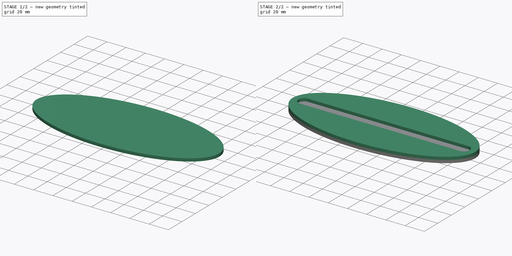
[diagram: build sequence overview — one tinted view per stage of 2, left to right]
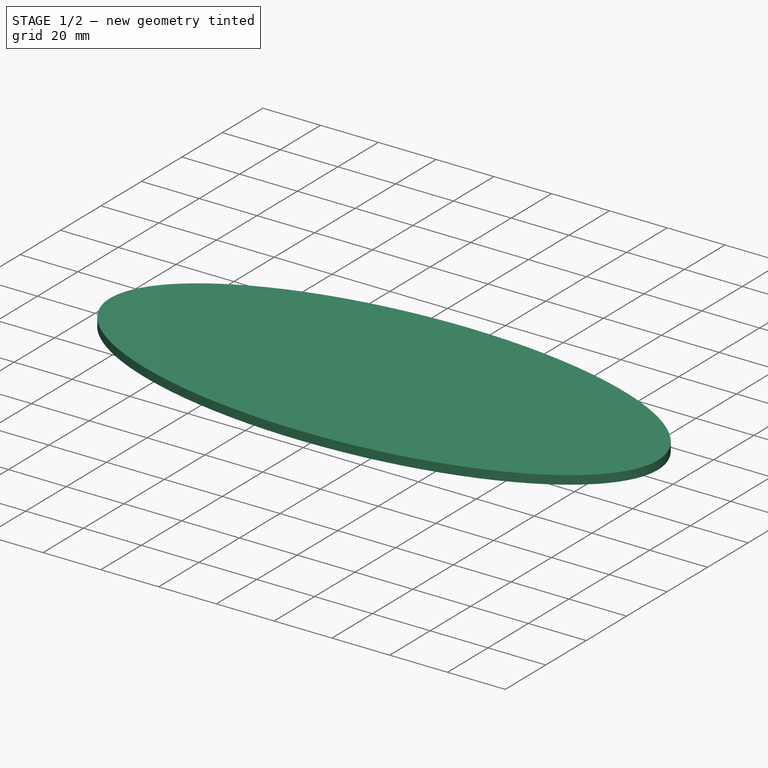
[diagram: stage 1 of 2 — iso view after this stage's code; geometry added in this stage tinted green]
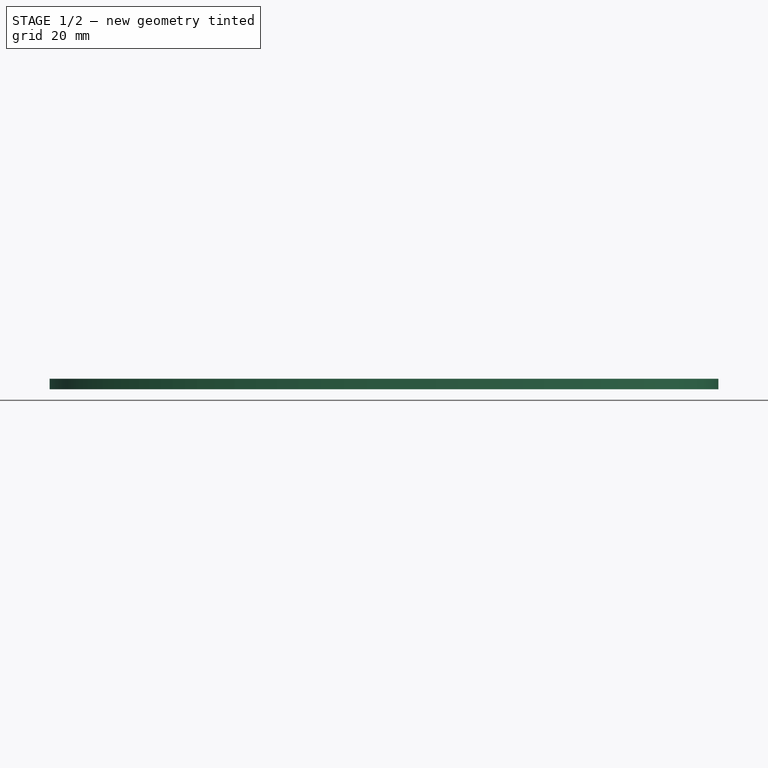
[diagram: stage 1 of 2 — front view after this stage's code; geometry added in this stage tinted green]
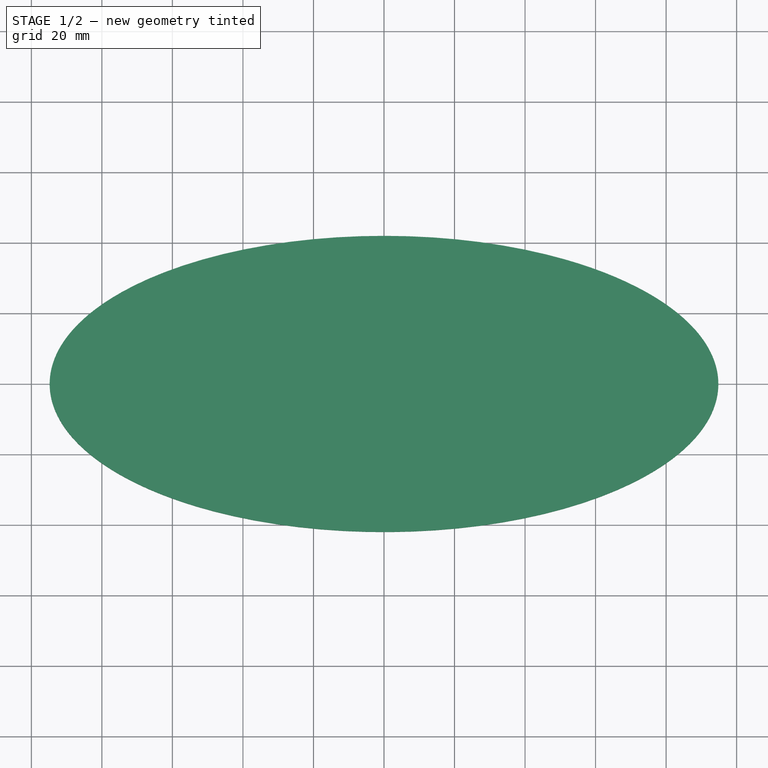
[diagram: stage 1 of 2 — top view after this stage's code; geometry added in this stage tinted green]
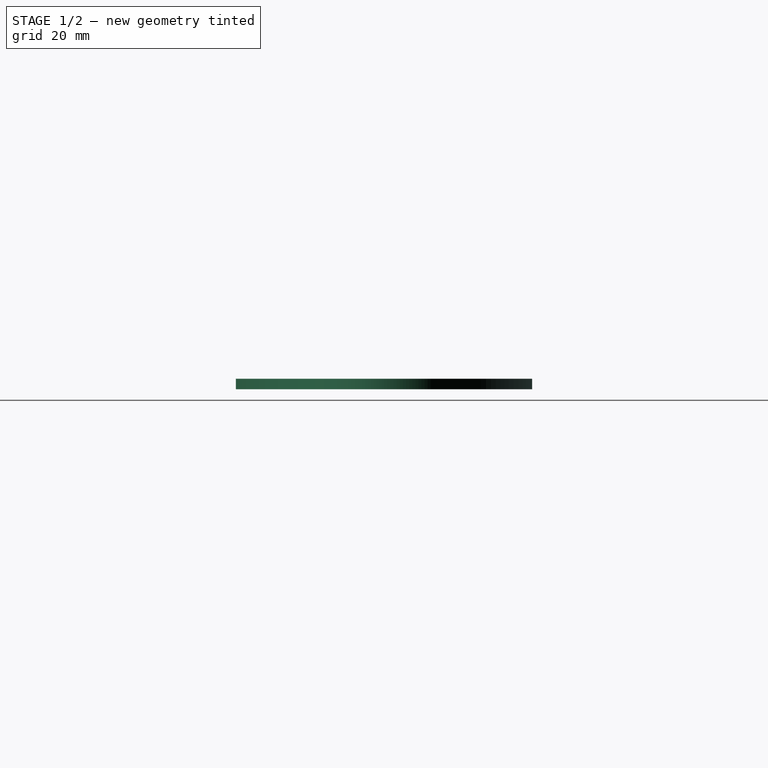
[diagram: stage 1 of 2 — right view after this stage's code; geometry added in this stage tinted green]
FCSTD DOCUMENT  (FreeCAD 0.17R13541 (Git))
Label: Acry-Base-24-WiFi
License: All rights reserved
LicenseURL: http://en.wikipedia.org/wiki/All_rights_reserved
objects: Sketcher::SketchObject×2, PartDesign::Pad×2, App::MeasureDistance×2, PartDesign::Body×1, App::Part×1
note: 7 computed .brp shape members not serialized (recipe doc carries the construction recipe); baked Part::Feature solids carry a one-line shape summary decoded from their .brp

FEATURE [Sketcher::SketchObject] Sketch
  MapMode = 5
  Support = -> [XY_Plane001]
  sketch-geometry (5):
    g0: Ellipse CenterX=0 CenterY=0 CenterZ=0 NormalX=0 NormalY=0 NormalZ=1 MajorRadius=94.8103 MinorRadius=42 AngleXU=0
    g1: LineSegment [constr] StartX=94.8103 StartY=0 StartZ=0 EndX=-94.8103 EndY=0 EndZ=0
    g2: LineSegment [constr] StartX=0 StartY=42 StartZ=0 EndX=0 EndY=-42 EndZ=0
    g3: GeomPoint X=85 Y=0 Z=0
    g4: GeomPoint X=-85 Y=0 Z=0
  constraints (5):
    c: InternalAlignment(g1-g4 -> g0) x4
    c: Coincident(g0,g-1)
    c: Distance(g3,g4) = 170
    c: Distance(g2,g2) = 84
    c: PointOnObject(g2,g-2)
FEATURE [PartDesign::Pad] Pad
  Length = 3
  Length2 = 100
  Profile = -> Sketch
  Type = 0
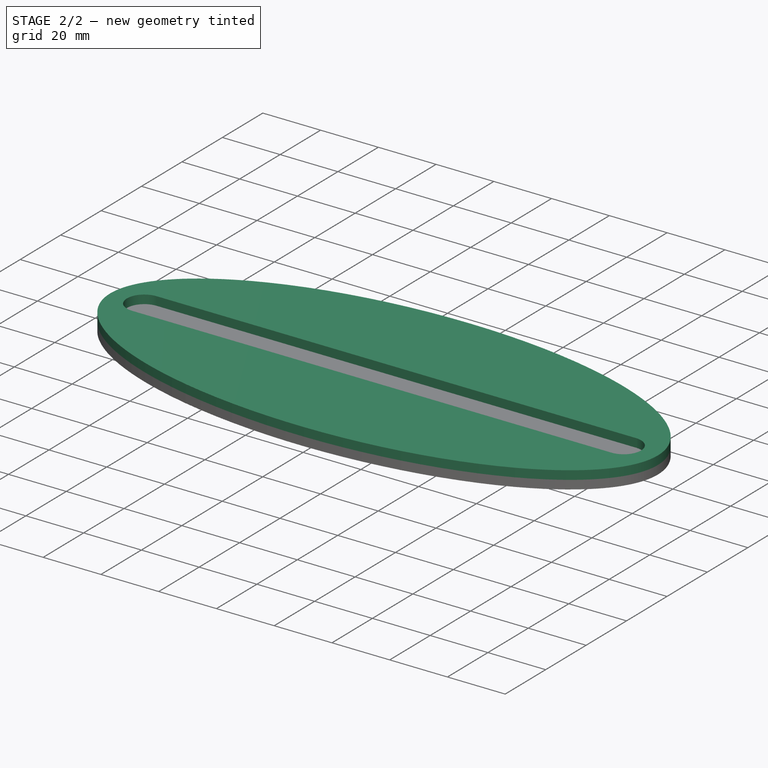
[diagram: stage 2 of 2 — iso view after this stage's code; geometry added in this stage tinted green]
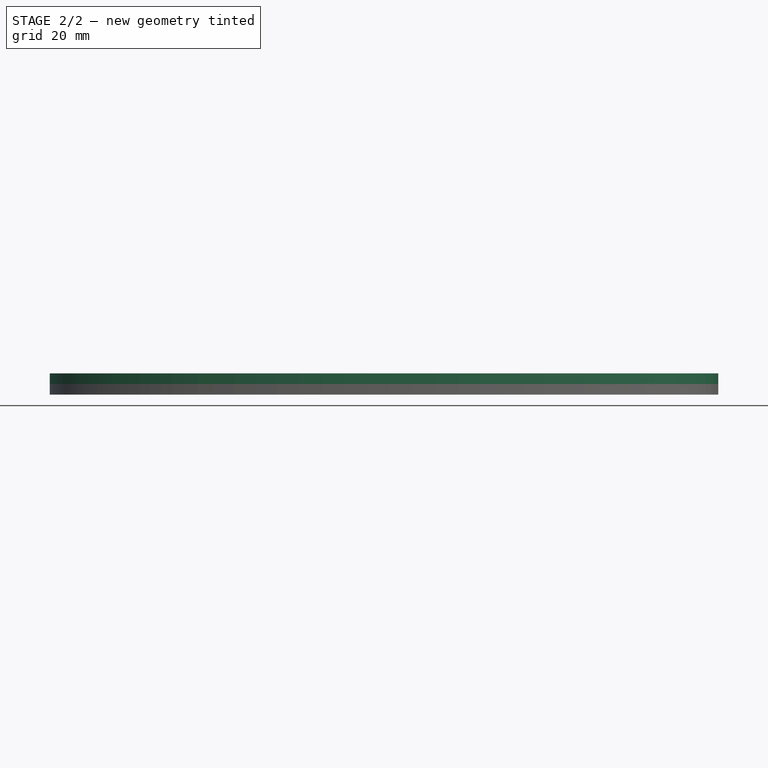
[diagram: stage 2 of 2 — front view after this stage's code; geometry added in this stage tinted green]
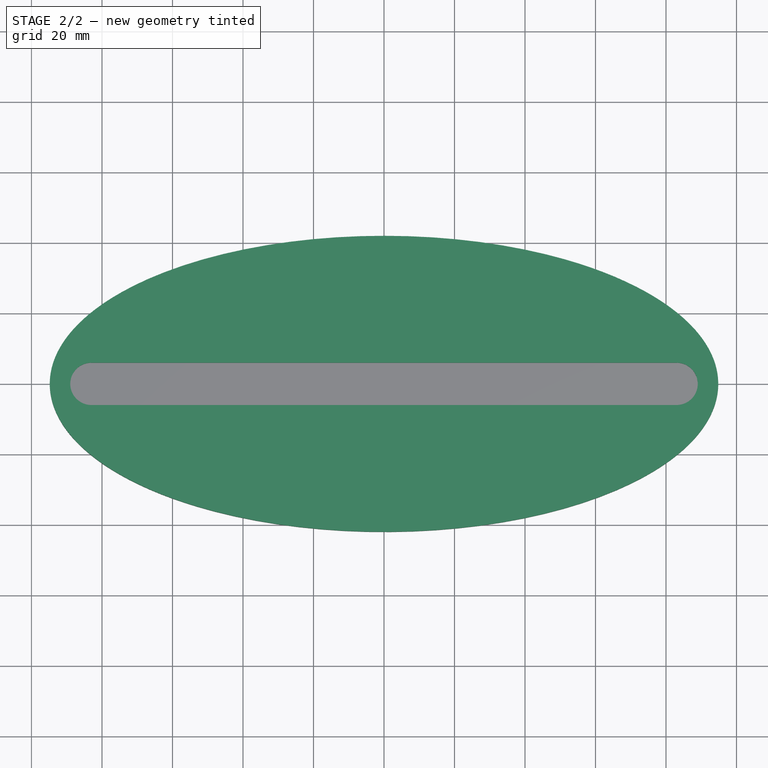
[diagram: stage 2 of 2 — top view after this stage's code; geometry added in this stage tinted green]
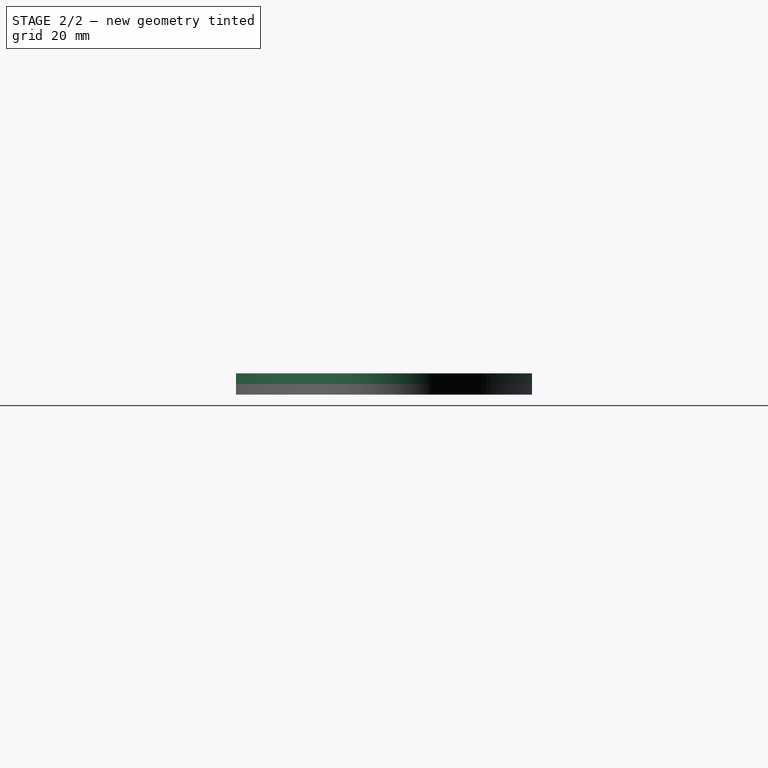
[diagram: stage 2 of 2 — right view after this stage's code; geometry added in this stage tinted green]
FEATURE [Sketcher::SketchObject] Sketch001
  ExternalGeometry = -> [Pad]
  MapMode = 5
  Placement = pos=(0,0,3) rot=(0,0,1;0rad)
  Support = -> [Pad]
  sketch-geometry (10):
    g0: ArcOfCircle CenterX=-83 CenterY=0 CenterZ=0 NormalX=0 NormalY=0 NormalZ=1 AngleXU=0 Radius=6 StartAngle=1.5708 EndAngle=4.71239
    g1: ArcOfCircle CenterX=83 CenterY=0 CenterZ=0 NormalX=0 NormalY=0 NormalZ=1 AngleXU=0 Radius=6 StartAngle=4.71239 EndAngle=7.85398
    g2: LineSegment StartX=-83 StartY=-6 StartZ=0 EndX=83 EndY=-6 EndZ=0
    g3: LineSegment StartX=-83 StartY=6 StartZ=0 EndX=83 EndY=6 EndZ=0
    g4: GeomPoint X=0 Y=6 Z=0
    g5: Ellipse CenterX=0 CenterY=0 CenterZ=0 NormalX=0 NormalY=0 NormalZ=1 MajorRadius=94.8103 MinorRadius=42 AngleXU=0
    g6: LineSegment [constr] StartX=94.8103 StartY=0 StartZ=0 EndX=-94.8103 EndY=0 EndZ=0
    g7: LineSegment [constr] StartX=0 StartY=42 StartZ=0 EndX=0 EndY=-42 EndZ=0
    g8: GeomPoint X=85 Y=0 Z=0
    g9: GeomPoint X=-85 Y=0 Z=0
  constraints (16):
    c: Tangent(g0,g3) = 1.5708
    c: Tangent(g0,g2) = -1.5708
    c: Tangent(g2,g1) = -1.5708
    c: Tangent(g3,g1) = 1.5708
    c: Horizontal(g2)
    c: Equal(g0,g1)
    c: Distance(g1,g0) = 166
    c: Distance(g0,g0) = 12
    c: PointOnObject(g1,g-1)
    c: PointOnObject(g4,g3)
    c: Symmetric(g1,g0,g4)
    c: PointOnObject(g4,g-2)
    c: InternalAlignment(g6-g9 -> g5) x4
    c: Equal(g-3,g5)
    c: Coincident(g5,g-1)
    c: PointOnObject(g7,g-2)
FEATURE [PartDesign::Pad] Pad001
  BaseFeature = -> Pad
  Length = 3
  Length2 = 100
  Profile = -> Sketch001
  Type = 0
FEATURE [PartDesign::Body] Body
  Group = -> [Sketch,Pad,Sketch001,Pad001]
  Origin = -> Origin001
  Tip = -> Pad001
FEATURE [App::Part] Part
  Group = -> [Body]
  License = CC BY 3.0
  LicenseURL = http://creativecommons.org/licenses/by/3.0/
  Origin = -> Origin
FEATURE [App::MeasureDistance] Distance  label="Distance: 5.84 mm"
  Distance = 5.83882
  P1 = (88.9815,0.470755,6)
  P2 = (94.8082,0.0948294,6)
FEATURE [App::MeasureDistance] Distance001  label="Distance: 5.81 mm"
  Distance = 5.81373
  P1 = (-89,0,6)
  P2 = (-94.8088,0.239594,6)
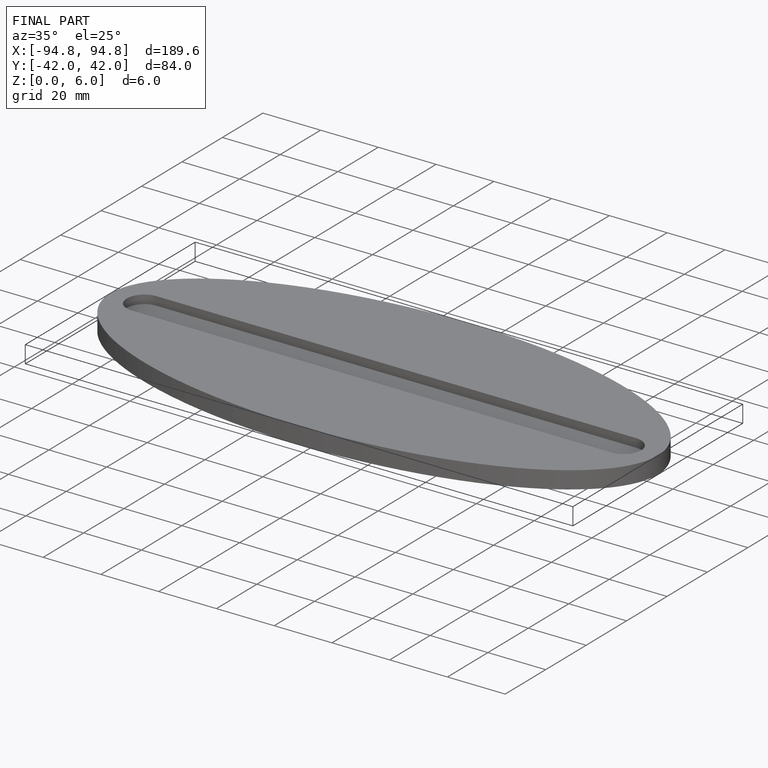
[diagram: finished part — iso view with bounding-box wireframe]
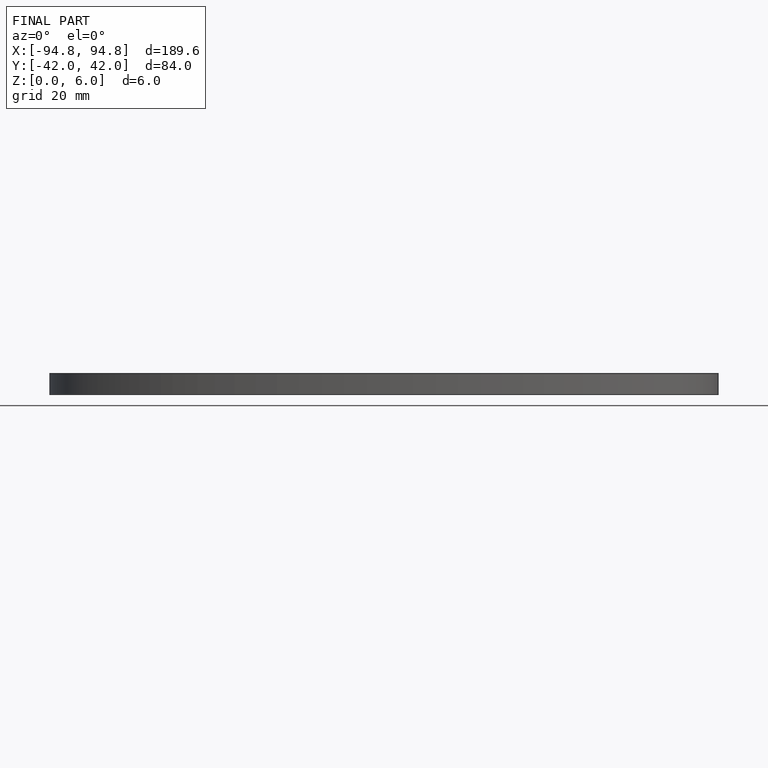
[diagram: finished part — front view with bounding-box wireframe]
